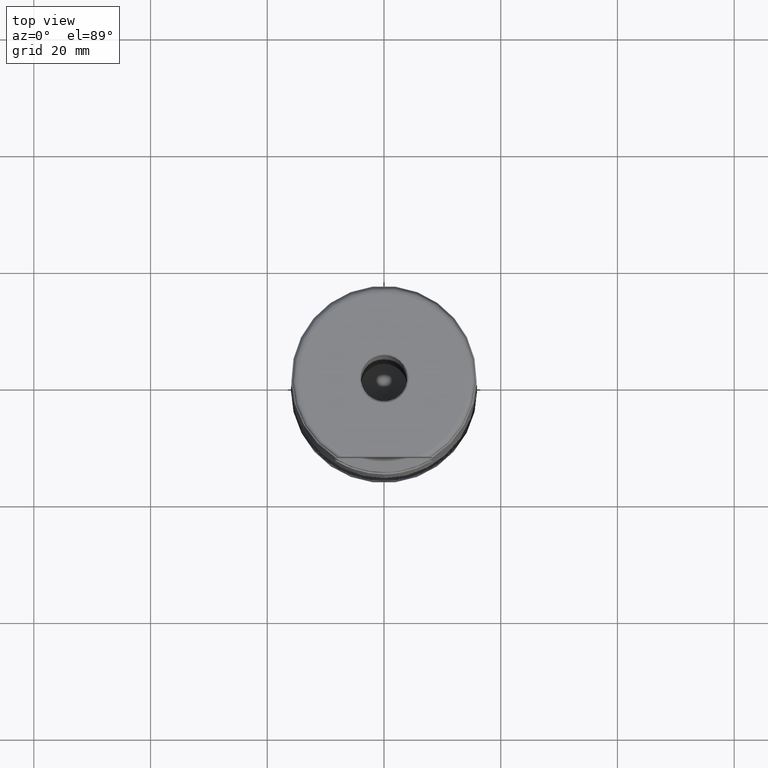
[diagram: clean part render]
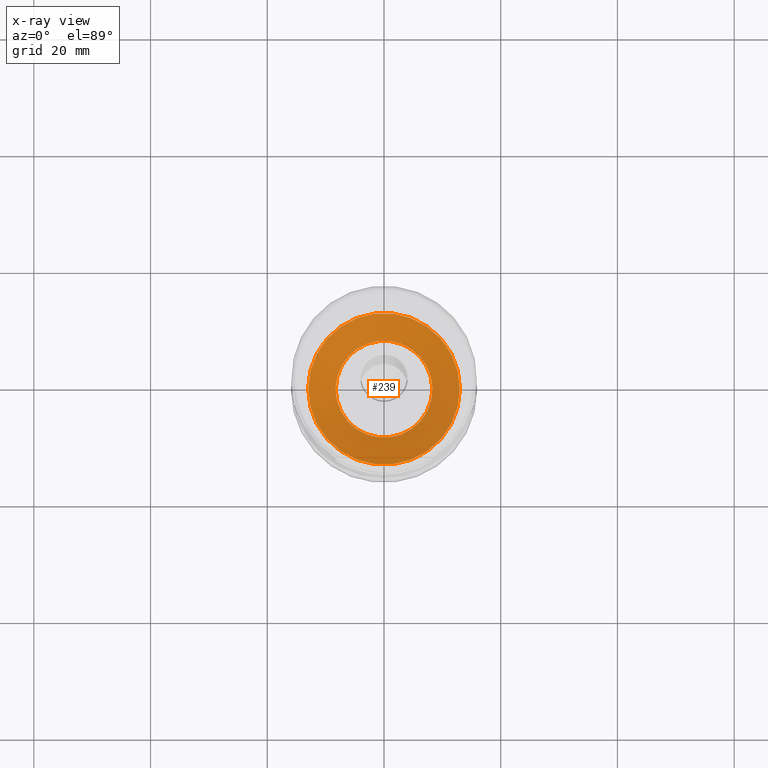
[diagram: x-ray — body ghosted, one internal face saturated and labeled with its STEP entity id]
A machine part, top view, then the same camera in x-ray: the body is ghosted and one INTERNAL B-rep face — a face not visible from any outside direction — is saturated and labeled: STEP entity #239.
In plain terms, the highlighted face is a SurfaceOfRevolution surface.
Its self-contained STEP definition (entity closure, byte-faithful):
#124=SURFACE_OF_REVOLUTION('',#837,#147);
#147=AXIS1_PLACEMENT('',#1782,#1103);
#239=ADVANCED_FACE('',(#372,#373),#124,.F.);
#292=CIRCLE('',#917,12.9912731011556);
#293=CIRCLE('',#918,8.2913724318027);
#372=FACE_BOUND('',#468,.T.);
#373=FACE_BOUND('',#469,.T.);
#468=EDGE_LOOP('',(#639));
#469=EDGE_LOOP('',(#640));
#639=ORIENTED_EDGE('',*,*,#780,.T.);
#640=ORIENTED_EDGE('',*,*,#781,.F.);
#709=VERTEX_POINT('',#1766);
#710=VERTEX_POINT('',#1775);
#780=EDGE_CURVE('',#709,#709,#292,.T.);
#781=EDGE_CURVE('',#710,#710,#293,.T.);
#837=B_SPLINE_CURVE_WITH_KNOTS('',5,(#1776,#1777,#1778,#1779,#1780,#1781),
 .UNSPECIFIED.,.F.,.F.,(6,6),(0.,1.),.UNSPECIFIED.);
#917=AXIS2_PLACEMENT_3D('',#1765,#1098,#1099);
#918=AXIS2_PLACEMENT_3D('',#1774,#1101,#1102);
#1098=DIRECTION('',(0.,0.,-1.));
#1099=DIRECTION('',(-1.,0.,0.));
#1101=DIRECTION('',(0.,0.,-1.));
#1102=DIRECTION('',(-1.,0.,0.));
#1103=DIRECTION('',(0.,0.,-1.));
#1765=CARTESIAN_POINT('',(0.,0.,7.01914628850088));
#1766=CARTESIAN_POINT('',(-12.9912731011556,0.,7.01914628850088));
#1774=CARTESIAN_POINT('',(0.,0.,4.34325750909209));
#1775=CARTESIAN_POINT('',(-8.2913724318027,0.,4.34325750909209));
#1776=CARTESIAN_POINT('',(8.29137246423073,0.,4.34325745556555));
#1777=CARTESIAN_POINT('',(9.21660370027443,-2.34357270113167E-32,4.90379093364312));
#1778=CARTESIAN_POINT('',(10.1496503339463,-2.11056368994713E-31,5.4514300974971));
#1779=CARTESIAN_POINT('',(11.0899413944277,-2.60208521396521E-15,5.98656871842005));
#1780=CARTESIAN_POINT('',(12.0372332727688,-2.60208521396521E-15,6.50917220220417));
#1781=CARTESIAN_POINT('',(12.9912731011556,-2.60208521396521E-15,7.01914628850088));
#1782=CARTESIAN_POINT('',(0.,0.,0.));